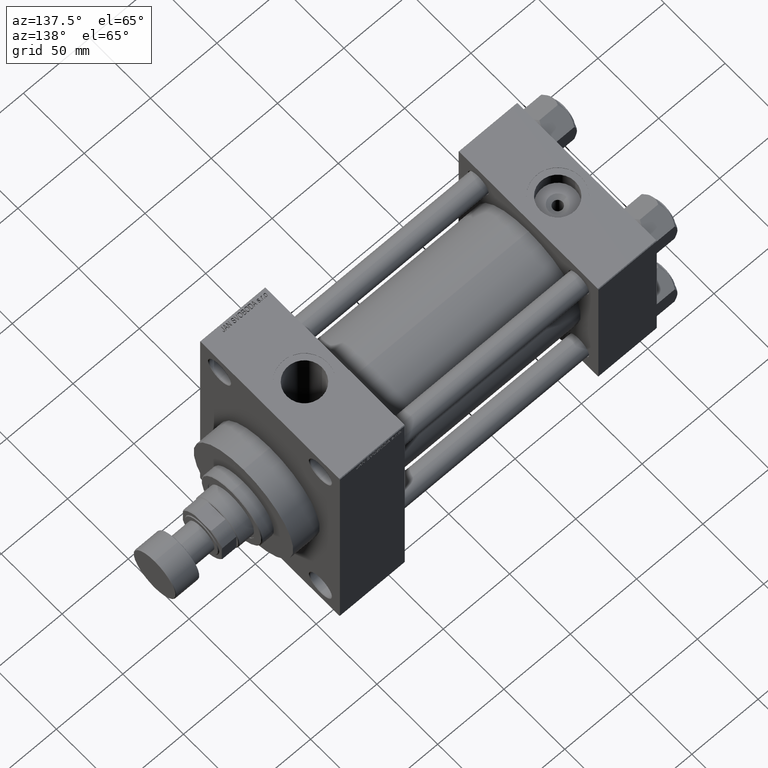
[diagram: clean part render]
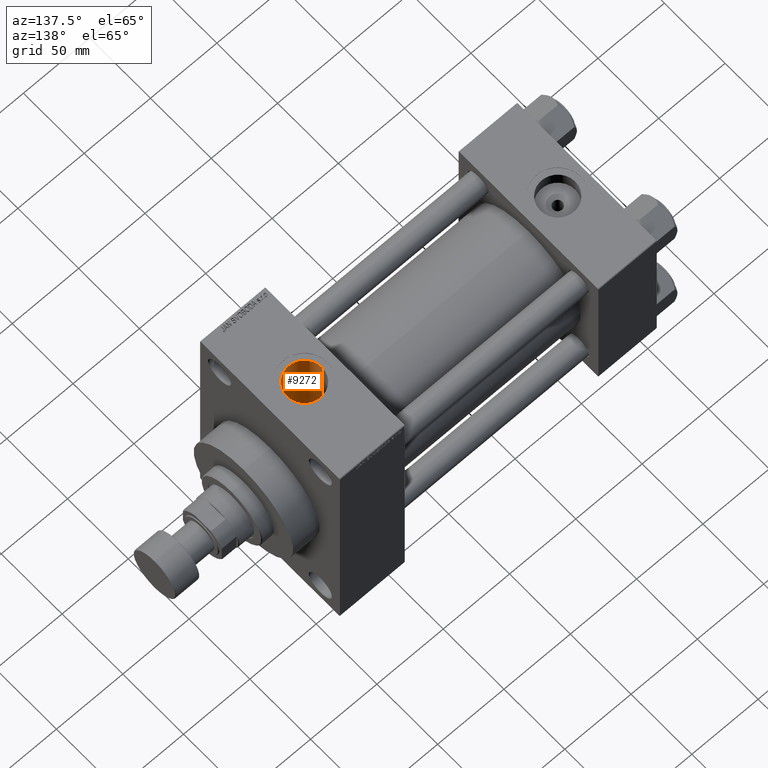
[diagram: same view with one face highlighted and labeled with its STEP entity id]
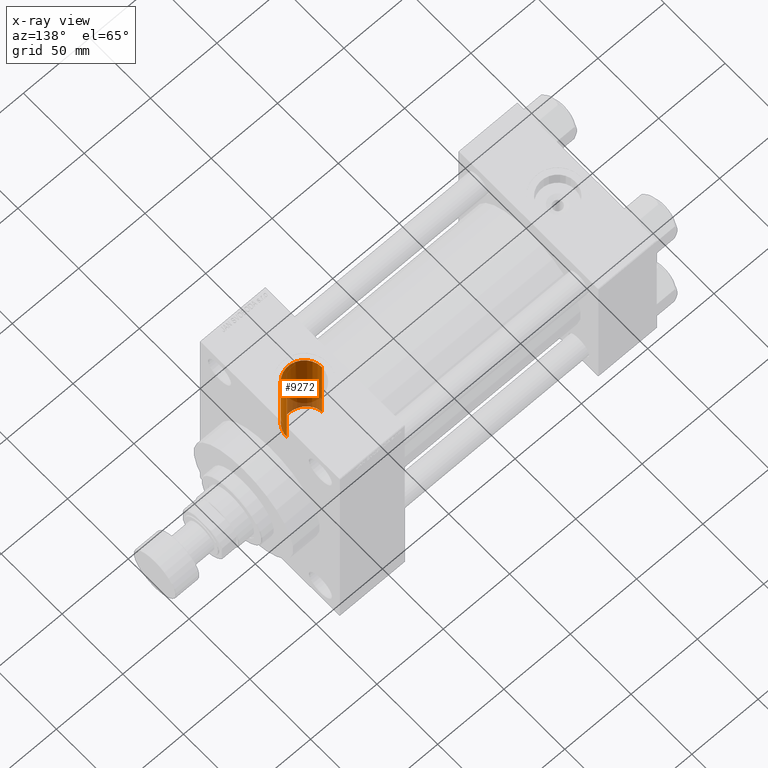
[diagram: x-ray of the same camera — body ghosted, the highlighted face saturated]
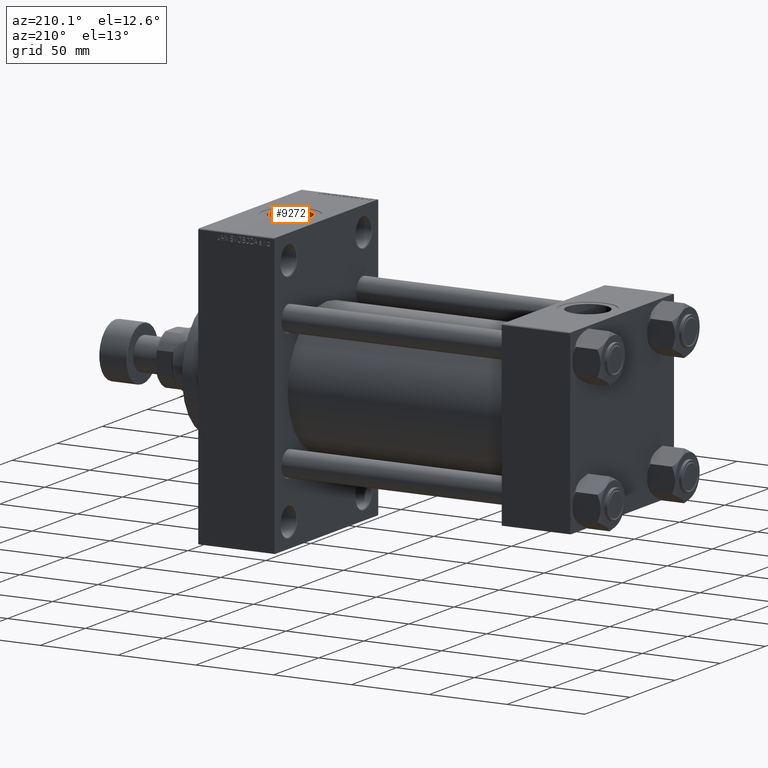
[diagram: same view with one face highlighted and labeled with its STEP entity id]
A machine part, auxiliary view. The second image highlights one B-rep face of the part: STEP entity #9272.
The next image is the same camera in x-ray: the body ghosted, the highlighted face saturated — about 15% of this face is hidden behind the body in this view.
A second angle (auxiliary view) of the same face is appended — the face is thin or edge-on in the first view.
In plain terms, the highlighted cylindrical surface (edge-blend (fillet) strip) has radius 13.22 mm, axis along (0, 0, -1).
Its self-contained STEP definition (entity closure, byte-faithful):
#436 = LINE ( 'NONE', #37188, #19700 ) ;
#968 = VERTEX_POINT ( 'NONE', #41038 ) ;
#1543 = CARTESIAN_POINT ( 'NONE',  ( 224.3340033522583497, -6.815280192024299133, 35.35054759480856035 ) ) ;
#1619 = ORIENTED_EDGE ( 'NONE', *, *, #22881, .F. ) ;
#2320 = CARTESIAN_POINT ( 'NONE',  ( 203.2203172874390305, -8.947551960444583230, 29.16865783815234536 ) ) ;
#2571 = CARTESIAN_POINT ( 'NONE',  ( 200.6573864625836165, -4.834977203227597720, 30.12760479331262786 ) ) ;
#2729 = B_SPLINE_CURVE_WITH_KNOTS ( 'NONE', 3,
 ( #32024, #28137, #42463, #16919, #20582, #35423, #31779, #46609, #42950, #9626, #39305, #5971, #20816, #35660, #2320, #10344, #25447, #25211, #39789, #2571, #10823, #17891, #35909, #33223, #39539, #47828, #6465, #47584 ),
 .UNSPECIFIED., .F., .F.,
 ( 4, 2, 2, 2, 2, 2, 2, 2, 2, 2, 2, 2, 2, 4 ),
 ( 0.01817501853417214860, 0.02113533814074454106, 0.02261549794403073729, 0.02409565774731693352, 0.02557581755060312975, 0.02705597735388932598, 0.03001629696046171497, 0.03297661656703410743, 0.03445677637032028284, 0.03593693617360645132, 0.03889725578017880214, 0.03963733568182188638, 0.04037741558346498449, 0.04185757538675115991 ),
 .UNSPECIFIED. ) ;
#2794 = CARTESIAN_POINT ( 'NONE',  ( 215.7400000000000091, -12.93293470176046789, 27.62225914004862659 ) ) ;
#3195 = EDGE_CURVE ( 'NONE', #9885, #42710, #2729, .T. ) ;
#3388 = CARTESIAN_POINT ( 'NONE',  ( 212.9999999999999716, 0.000000000000000000, 112.7999999999999829 ) ) ;
#3470 = AXIS2_PLACEMENT_3D ( 'NONE', #6841, #22408, #25347 ) ;
#4246 = B_SPLINE_CURVE_WITH_KNOTS ( 'NONE', 3,
 ( #31970, #5186, #34888, #24429, #23704, #46806, #46077, #13454, #28565, #1543, #35855, #5427, #23939, #38540, #20286, #43137, #12729, #35128, #28327, #20036, #35369, #38774, #24665, #39485, #39016, #42414 ),
 .UNSPECIFIED., .F., .F.,
 ( 4, 2, 2, 2, 2, 2, 2, 2, 2, 2, 2, 2, 4 ),
 ( 0.01810032772820879474, 0.02036086973656274501, 0.02149114074073972536, 0.02262141174491670570, 0.02488195375327067332, 0.02601222475744767795, 0.02714249576162468258, 0.02940303776997863633, 0.03053330877415558545, 0.03166357977833253456, 0.03392412178668642586, 0.03505439279086336457, 0.03618466379504031022 ),
 .UNSPECIFIED. ) ;
#4816 = DIRECTION ( 'NONE',  ( 0.000000000000000000, 0.000000000000000000, -1.000000000000000000 ) ) ;
#5186 = CARTESIAN_POINT ( 'NONE',  ( 226.2200000000000273, -0.7632647160769600037, 36.00000000000000711 ) ) ;
#5427 = CARTESIAN_POINT ( 'NONE',  ( 223.7144084780975390, -7.753104972441676956, 35.15664683191295126 ) ) ;
#5971 = CARTESIAN_POINT ( 'NONE',  ( 206.2234386244903988, -11.39284893347530492, 28.29622104590159282 ) ) ;
#6313 = DIRECTION ( 'NONE',  ( -1.000000000000000000, 0.000000000000000000, 0.000000000000000000 ) ) ;
#6465 = CARTESIAN_POINT ( 'NONE',  ( 199.7799999999999443, -0.4934884814115296225, 30.50000000000000000 ) ) ;
#6563 = CIRCLE ( 'NONE', #3470, 13.22000000000000952 ) ;
#6827 = EDGE_CURVE ( 'NONE', #9885, #11843, #436, .T. ) ;
#6841 = CARTESIAN_POINT ( 'NONE',  ( 212.9999999999999716, 0.000000000000000000, 89.79999999999999716 ) ) ;
#7039 = CYLINDRICAL_SURFACE ( 'NONE', #26109, 13.22000000000000952 ) ;
#7771 = ORIENTED_EDGE ( 'NONE', *, *, #6827, .F. ) ;
#9272 = ADVANCED_FACE ( 'NONE', ( #39638 ), #7039, .F. ) ;
#9626 = CARTESIAN_POINT ( 'NONE',  ( 207.9856869291995167, -12.24205054737454823, 27.93593895886878897 ) ) ;
#9885 = VERTEX_POINT ( 'NONE', #2794 ) ;
#10344 = CARTESIAN_POINT ( 'NONE',  ( 202.3230183722455990, -7.810479071823825947, 29.48561069758633835 ) ) ;
#10823 = CARTESIAN_POINT ( 'NONE',  ( 200.3336605936849821, -3.913778405700242935, 30.26347032903656853 ) ) ;
#11843 = VERTEX_POINT ( 'NONE', #39007 ) ;
#12007 = VECTOR ( 'NONE', #38196, 1000.000000000000000 ) ;
#12729 = CARTESIAN_POINT ( 'NONE',  ( 221.1396695021039136, -10.42376285600495578, 34.45866136291868287 ) ) ;
#13454 = CARTESIAN_POINT ( 'NONE',  ( 225.1948937127547481, -5.159834589306217190, 35.63551938799944452 ) ) ;
#15268 = DIRECTION ( 'NONE',  ( -0.000000000000000000, -0.000000000000000000, 1.000000000000000000 ) ) ;
#15440 = CARTESIAN_POINT ( 'NONE',  ( 199.7799999999999443, 3.735152335644797090E-15, 30.50000000000000000 ) ) ;
#16919 = CARTESIAN_POINT ( 'NONE',  ( 212.3058823230128667, -13.21107762266989738, 27.49031640659329057 ) ) ;
#17891 = CARTESIAN_POINT ( 'NONE',  ( 200.0571384771799615, -2.704130925345944902, 30.38086169036232320 ) ) ;
#19700 = VECTOR ( 'NONE', #15268, 1000.000000000000000 ) ;
#20036 = CARTESIAN_POINT ( 'NONE',  ( 219.2689392453522146, -11.66300537238689117, 34.06086853725207675 ) ) ;
#20286 = CARTESIAN_POINT ( 'NONE',  ( 222.2683236211793201, -9.456123306897652014, 34.73961675537525196 ) ) ;
#20582 = CARTESIAN_POINT ( 'NONE',  ( 211.8037034507516978, -13.17510903343229600, 27.50766127672411443 ) ) ;
#20816 = CARTESIAN_POINT ( 'NONE',  ( 205.4103075940780059, -10.86814745508435642, 28.50545567885847120 ) ) ;
#22408 = DIRECTION ( 'NONE',  ( -0.000000000000000000, -0.000000000000000000, -1.000000000000000000 ) ) ;
#22437 = ORIENTED_EDGE ( 'NONE', *, *, #3195, .T. ) ;
#22881 = EDGE_CURVE ( 'NONE', #36593, #42710, #44329, .T. ) ;
#23704 = CARTESIAN_POINT ( 'NONE',  ( 225.8814408249626240, -2.996635129533358644, 35.87694312671834496 ) ) ;
#23939 = CARTESIAN_POINT ( 'NONE',  ( 223.4891427515921691, -8.055144359843685820, 35.08850325643998502 ) ) ;
#24429 = CARTESIAN_POINT ( 'NONE',  ( 225.9615557504129697, -2.628343228240498597, 35.90584824798533958 ) ) ;
#24665 = CARTESIAN_POINT ( 'NONE',  ( 217.2076088460675010, -12.53825874082046354, 33.74619856893891523 ) ) ;
#25211 = CARTESIAN_POINT ( 'NONE',  ( 201.5247582497704570, -6.582345398711130890, 29.78430981770567954 ) ) ;
#25347 = DIRECTION ( 'NONE',  ( 1.000000000000000000, 0.000000000000000000, 0.000000000000000000 ) ) ;
#25447 = CARTESIAN_POINT ( 'NONE',  ( 202.0434615026330221, -7.413683856886519763, 29.58833678893007146 ) ) ;
#25633 = EDGE_CURVE ( 'NONE', #35422, #36593, #6563, .T. ) ;
#25744 = EDGE_CURVE ( 'NONE', #35422, #968, #30438, .T. ) ;
#26109 = AXIS2_PLACEMENT_3D ( 'NONE', #3388, #28963, #6313 ) ;
#26757 = CARTESIAN_POINT ( 'NONE',  ( 199.7799999999999443, 0.000000000000000000, 112.7999999999999829 ) ) ;
#28137 = CARTESIAN_POINT ( 'NONE',  ( 214.7728848785531284, -13.13782983916527769, 27.52632580529387951 ) ) ;
#28327 = CARTESIAN_POINT ( 'NONE',  ( 220.2234778375481028, -11.07831175427971360, 34.25365854375355923 ) ) ;
#28565 = CARTESIAN_POINT ( 'NONE',  ( 224.8836492013383292, -5.839896060611116546, 35.52932100949514904 ) ) ;
#28963 = DIRECTION ( 'NONE',  ( 0.000000000000000000, 0.000000000000000000, -1.000000000000000000 ) ) ;
#30438 = LINE ( 'NONE', #34778, #12007 ) ;
#31779 = CARTESIAN_POINT ( 'NONE',  ( 210.3349265898027909, -12.95789683450919583, 27.61085799903362314 ) ) ;
#31970 = CARTESIAN_POINT ( 'NONE',  ( 226.2199999999999704, 4.408731805096607676E-15, 36.00000000000000000 ) ) ;
#32024 = CARTESIAN_POINT ( 'NONE',  ( 215.7400000000000091, -12.93293470176046789, 27.62225914004862659 ) ) ;
#32606 = ORIENTED_EDGE ( 'NONE', *, *, #25633, .F. ) ;
#33223 = CARTESIAN_POINT ( 'NONE',  ( 199.9249887712034024, -1.968324950537296392, 30.43741289426055019 ) ) ;
#34481 = VECTOR ( 'NONE', #4816, 1000.000000000000000 ) ;
#34778 = CARTESIAN_POINT ( 'NONE',  ( 226.2199999999999704, 1.618983068472802532E-15, 112.7999999999999829 ) ) ;
#34888 = CARTESIAN_POINT ( 'NONE',  ( 226.1544019816762159, -1.515576091947735904, 35.97576316411753794 ) ) ;
#35128 = CARTESIAN_POINT ( 'NONE',  ( 220.5356348427428657, -10.86845247487189425, 34.32099817610181702 ) ) ;
#35369 = CARTESIAN_POINT ( 'NONE',  ( 218.6039743856111386, -11.99680468088061680, 33.94354112271071955 ) ) ;
#35422 = VERTEX_POINT ( 'NONE', #46696 ) ;
#35423 = CARTESIAN_POINT ( 'NONE',  ( 210.8194127222319310, -13.04835861710615141, 27.56801161413727996 ) ) ;
#35551 = ORIENTED_EDGE ( 'NONE', *, *, #41973, .T. ) ;
#35660 = CARTESIAN_POINT ( 'NONE',  ( 203.8972371638812149, -9.636377362439834116, 28.94508358760565869 ) ) ;
#35855 = CARTESIAN_POINT ( 'NONE',  ( 224.1369082302657603, -7.132913908064965725, 35.28770313236167055 ) ) ;
#35909 = CARTESIAN_POINT ( 'NONE',  ( 200.0082494278150591, -2.458584717718196089, 30.40173955536769057 ) ) ;
#36593 = VERTEX_POINT ( 'NONE', #39677 ) ;
#37188 = CARTESIAN_POINT ( 'NONE',  ( 215.7400000000000091, -12.93293470176046611, 112.7999999999999829 ) ) ;
#38162 = EDGE_LOOP ( 'NONE', ( #32606, #42956, #35551, #7771, #22437, #1619 ) ) ;
#38196 = DIRECTION ( 'NONE',  ( 0.000000000000000000, 0.000000000000000000, -1.000000000000000000 ) ) ;
#38540 = CARTESIAN_POINT ( 'NONE',  ( 222.7829955645538007, -8.922873027715070293, 34.88174282732674669 ) ) ;
#38774 = CARTESIAN_POINT ( 'NONE',  ( 217.5622627804116291, -12.41346128962091377, 33.79242230791055590 ) ) ;
#39007 = CARTESIAN_POINT ( 'NONE',  ( 215.7400000000000091, -12.93293470176046611, 33.59671412504502541 ) ) ;
#39016 = CARTESIAN_POINT ( 'NONE',  ( 216.1130436000879058, -12.85390086390294861, 33.62713791769439808 ) ) ;
#39305 = CARTESIAN_POINT ( 'NONE',  ( 207.5318111534776904, -12.04594987798921757, 28.02143598411491610 ) ) ;
#39485 = CARTESIAN_POINT ( 'NONE',  ( 216.4827252521804439, -12.75862568112613005, 33.66350131574144200 ) ) ;
#39539 = CARTESIAN_POINT ( 'NONE',  ( 199.8904211679683840, -1.722922135315100522, 30.45229114395320735 ) ) ;
#39638 = FACE_OUTER_BOUND ( 'NONE', #38162, .T. ) ;
#39677 = CARTESIAN_POINT ( 'NONE',  ( 199.7799999999999443, 0.000000000000000000, 89.79999999999999716 ) ) ;
#39789 = CARTESIAN_POINT ( 'NONE',  ( 201.2888049357341345, -6.152518877594253865, 29.87635194004260342 ) ) ;
#41038 = CARTESIAN_POINT ( 'NONE',  ( 226.2199999999999704, 4.408731805096607676E-15, 36.00000000000000000 ) ) ;
#41973 = EDGE_CURVE ( 'NONE', #968, #11843, #4246, .T. ) ;
#42414 = CARTESIAN_POINT ( 'NONE',  ( 215.7400000000000091, -12.93293470176046611, 33.59671412504502541 ) ) ;
#42463 = CARTESIAN_POINT ( 'NONE',  ( 213.7935798839906738, -13.23338642126742926, 27.47958799131999186 ) ) ;
#42710 = VERTEX_POINT ( 'NONE', #15440 ) ;
#42950 = CARTESIAN_POINT ( 'NONE',  ( 208.9108056136110179, -12.58132053668448513, 27.78479549450234387 ) ) ;
#42956 = ORIENTED_EDGE ( 'NONE', *, *, #25744, .T. ) ;
#43137 = CARTESIAN_POINT ( 'NONE',  ( 221.4301524439943023, -10.19013505585468593, 34.52862519156883536 ) ) ;
#44329 = LINE ( 'NONE', #26757, #34481 ) ;
#46077 = CARTESIAN_POINT ( 'NONE',  ( 225.5762609626179085, -4.092528755394239326, 35.76841822259746095 ) ) ;
#46609 = CARTESIAN_POINT ( 'NONE',  ( 209.3806226936401913, -12.72437874985378770, 27.71924882183592231 ) ) ;
#46696 = CARTESIAN_POINT ( 'NONE',  ( 226.2199999999999704, 1.618983068472802926E-15, 89.79999999999999716 ) ) ;
#46806 = CARTESIAN_POINT ( 'NONE',  ( 225.6891278366015854, -3.727918262643087566, 35.80834393886973288 ) ) ;
#47584 = CARTESIAN_POINT ( 'NONE',  ( 199.7799999999999443, 3.735152335644797090E-15, 30.50000000000000000 ) ) ;
#47828 = CARTESIAN_POINT ( 'NONE',  ( 199.8075453442666571, -0.9859064391995635557, 30.48803002647009563 ) ) ;